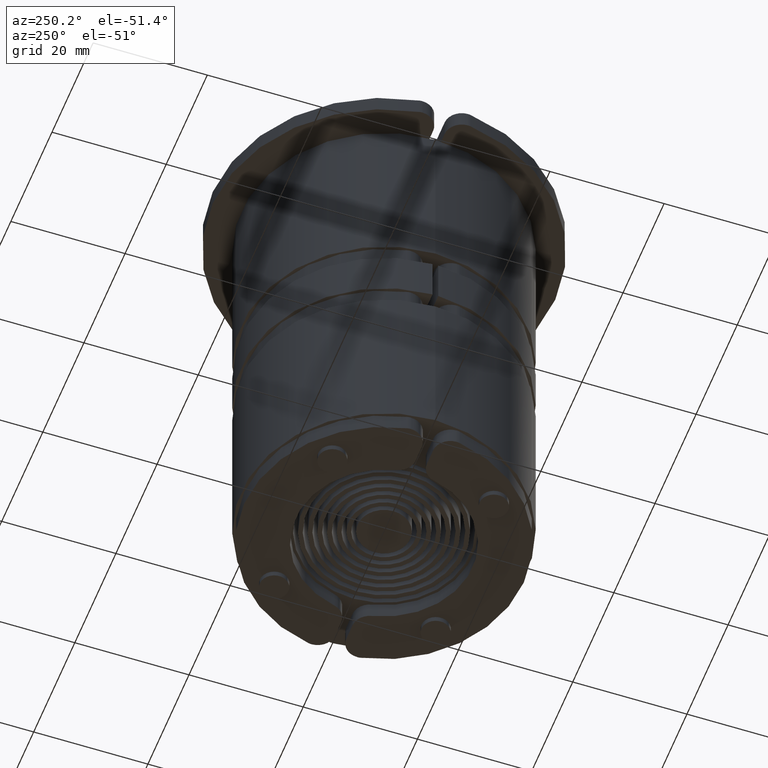
[diagram: clean part render]
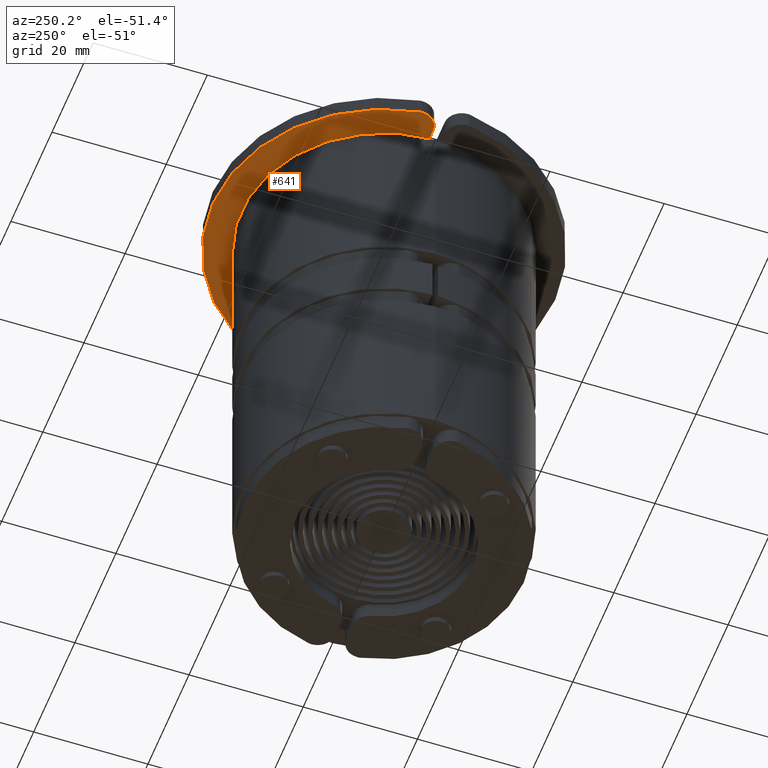
[diagram: same view with one face highlighted and labeled with its STEP entity id]
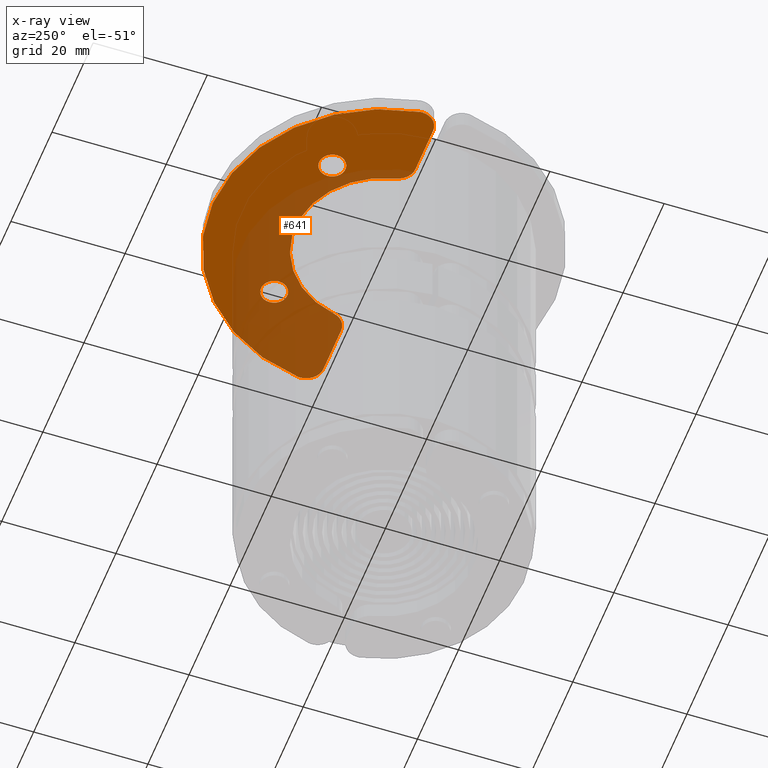
[diagram: x-ray of the same camera — body ghosted, the highlighted face saturated]
A machine part, auxiliary view. The second image highlights one B-rep face of the part: STEP entity #641.
The next image is the same camera in x-ray: the body ghosted, the highlighted face saturated — about 45% of this face is hidden behind the body in this view.
In plain terms, the highlighted planar face has unit normal (0, 0, -1).
Its self-contained STEP definition (entity closure, byte-faithful):
#165=CARTESIAN_POINT('',(16.451535623731047,-1.357864376269390,1.750000000000000));
#166=VERTEX_POINT('',#165);
#182=CARTESIAN_POINT('',(11.832735623731065,-1.357864376269390,1.750000000000000));
#183=VERTEX_POINT('',#182);
#190=CARTESIAN_POINT('',(14.142135623731065,-1.357864376269390,1.750000000000000));
#191=DIRECTION('',(0.0,0.0,1.0));
#192=DIRECTION('',(1.0,0.0,0.0));
#193=AXIS2_PLACEMENT_3D('',#190,#191,#192);
#194=CIRCLE('',#193,2.309400000000000);
#195=EDGE_CURVE('',#183,#166,#194,.T.);
#207=CARTESIAN_POINT('',(-11.832735623731082,-1.357864376269617,1.750000000000000));
#208=VERTEX_POINT('',#207);
#224=CARTESIAN_POINT('',(-16.451535623731065,-1.357864376269617,1.750000000000000));
#225=VERTEX_POINT('',#224);
#232=CARTESIAN_POINT('',(-14.142135623731065,-1.357864376269617,1.750000000000000));
#233=DIRECTION('',(0.0,0.0,1.0));
#234=DIRECTION('',(1.0,0.0,0.0));
#235=AXIS2_PLACEMENT_3D('',#232,#233,#234);
#236=CIRCLE('',#235,2.309400000000000);
#237=EDGE_CURVE('',#225,#208,#236,.T.);
#247=CARTESIAN_POINT('',(-29.702059845636541,-11.500000000000455,1.750000000000000));
#248=VERTEX_POINT('',#247);
#257=CARTESIAN_POINT('',(-29.668955384041624,-11.055555555555429,1.750000000000000));
#258=VERTEX_POINT('',#257);
#259=CARTESIAN_POINT('',(-26.702059845636541,-11.500000000000455,1.750000000000000));
#260=DIRECTION('',(0.0,0.0,-1.0));
#261=DIRECTION('',(1.0,0.0,0.0));
#262=AXIS2_PLACEMENT_3D('',#259,#260,#261);
#263=CIRCLE('',#262,3.0);
#264=EDGE_CURVE('',#248,#258,#263,.T.);
#291=CARTESIAN_POINT('',(29.702059845636541,-11.500000000000455,1.750000000000000));
#292=VERTEX_POINT('',#291);
#308=CARTESIAN_POINT('',(29.668955384041624,-11.055555555555429,1.750000000000000));
#309=VERTEX_POINT('',#308);
#316=CARTESIAN_POINT('',(26.702059845636541,-11.500000000000455,1.750000000000000));
#317=DIRECTION('',(0.0,0.0,-1.0));
#318=DIRECTION('',(1.0,0.0,0.0));
#319=AXIS2_PLACEMENT_3D('',#316,#317,#318);
#320=CIRCLE('',#319,3.0);
#321=EDGE_CURVE('',#309,#292,#320,.T.);
#332=CARTESIAN_POINT('',(26.702059845636541,-14.500000000000455,1.750000000000000));
#333=VERTEX_POINT('',#332);
#334=CARTESIAN_POINT('',(26.702059845636541,-11.500000000000455,1.750000000000000));
#335=DIRECTION('',(0.0,0.0,-1.0));
#336=DIRECTION('',(1.0,0.0,0.0));
#337=AXIS2_PLACEMENT_3D('',#334,#335,#336);
#338=CIRCLE('',#337,3.0);
#339=EDGE_CURVE('',#292,#333,#338,.T.);
#364=CARTESIAN_POINT('',(18.062391868187660,-14.500000000000455,1.750000000000000));
#365=VERTEX_POINT('',#364);
#366=CARTESIAN_POINT('',(26.702059845636541,-14.500000000000455,1.750000000000000));
#367=DIRECTION('',(-1.0,0.0,0.0));
#368=VECTOR('',#367,8.639667977448880);
#369=LINE('',#366,#368);
#370=EDGE_CURVE('',#333,#365,#369,.T.);
#395=CARTESIAN_POINT('',(15.133355349022622,-12.148648648648759,1.750000000000000));
#396=VERTEX_POINT('',#395);
#397=CARTESIAN_POINT('',(18.062391868187660,-11.500000000000455,1.750000000000000));
#398=DIRECTION('',(0.0,0.0,-1.0));
#399=DIRECTION('',(1.0,0.0,0.0));
#400=AXIS2_PLACEMENT_3D('',#397,#398,#399);
#401=CIRCLE('',#400,3.0);
#402=EDGE_CURVE('',#365,#396,#401,.T.);
#428=CARTESIAN_POINT('',(-15.133355349021485,-12.148648648649214,1.750000000000000));
#429=VERTEX_POINT('',#428);
#430=CARTESIAN_POINT('',(0.0,-15.500000000000455,1.750000000000000));
#431=DIRECTION('',(0.0,0.0,1.0));
#432=DIRECTION('',(1.0,0.0,0.0));
#433=AXIS2_PLACEMENT_3D('',#430,#431,#432);
#434=CIRCLE('',#433,15.500000000000000);
#435=EDGE_CURVE('',#396,#429,#434,.T.);
#461=CARTESIAN_POINT('',(-18.062391868187206,-14.500000000000455,1.750000000000000));
#462=VERTEX_POINT('',#461);
#463=CARTESIAN_POINT('',(-18.062391868187206,-11.500000000000455,1.750000000000000));
#464=DIRECTION('',(0.0,0.0,-1.0));
#465=DIRECTION('',(1.0,0.0,0.0));
#466=AXIS2_PLACEMENT_3D('',#463,#464,#465);
#467=CIRCLE('',#466,3.0);
#468=EDGE_CURVE('',#429,#462,#467,.T.);
#494=CARTESIAN_POINT('',(-26.702059845636541,-14.500000000000455,1.750000000000000));
#495=VERTEX_POINT('',#494);
#496=CARTESIAN_POINT('',(-18.062391868187206,-14.500000000000455,1.750000000000000));
#497=DIRECTION('',(-1.0,0.0,0.0));
#498=VECTOR('',#497,8.639667977449335);
#499=LINE('',#496,#498);
#500=EDGE_CURVE('',#462,#495,#499,.T.);
#534=CARTESIAN_POINT('',(-26.702059845636541,-11.500000000000455,1.750000000000000));
#535=DIRECTION('',(0.0,0.0,-1.0));
#536=DIRECTION('',(1.0,0.0,0.0));
#537=AXIS2_PLACEMENT_3D('',#534,#535,#536);
#538=CIRCLE('',#537,3.0);
#539=EDGE_CURVE('',#495,#248,#538,.T.);
#549=CARTESIAN_POINT('',(0.0,-15.499999999999773,1.750000000000000));
#550=DIRECTION('',(0.0,0.0,-1.0));
#551=DIRECTION('',(1.0,0.0,0.0));
#552=AXIS2_PLACEMENT_3D('',#549,#550,#551);
#553=CIRCLE('',#552,30.000000000000071);
#554=EDGE_CURVE('',#258,#309,#553,.T.);
#574=CARTESIAN_POINT('',(-14.142135623731065,-1.357864376269617,1.750000000000000));
#575=DIRECTION('',(0.0,0.0,1.0));
#576=DIRECTION('',(1.0,0.0,0.0));
#577=AXIS2_PLACEMENT_3D('',#574,#575,#576);
#578=CIRCLE('',#577,2.309400000000000);
#579=EDGE_CURVE('',#208,#225,#578,.T.);
#598=CARTESIAN_POINT('',(14.142135623731065,-1.357864376269390,1.750000000000000));
#599=DIRECTION('',(0.0,0.0,1.0));
#600=DIRECTION('',(1.0,0.0,0.0));
#601=AXIS2_PLACEMENT_3D('',#598,#599,#600);
#602=CIRCLE('',#601,2.309400000000000);
#603=EDGE_CURVE('',#166,#183,#602,.T.);
#616=CARTESIAN_POINT('',(0.0,-2.400749391979389,1.750000000000000));
#617=DIRECTION('',(0.0,0.0,1.0));
#618=DIRECTION('',(1.0,0.0,0.0));
#619=AXIS2_PLACEMENT_3D('',#616,#617,#618);
#620=PLANE('',#619);
#621=ORIENTED_EDGE('',*,*,#321,.F.);
#622=ORIENTED_EDGE('',*,*,#554,.F.);
#623=ORIENTED_EDGE('',*,*,#264,.F.);
#624=ORIENTED_EDGE('',*,*,#539,.F.);
#625=ORIENTED_EDGE('',*,*,#500,.F.);
#626=ORIENTED_EDGE('',*,*,#468,.F.);
#627=ORIENTED_EDGE('',*,*,#435,.F.);
#628=ORIENTED_EDGE('',*,*,#402,.F.);
#629=ORIENTED_EDGE('',*,*,#370,.F.);
#630=ORIENTED_EDGE('',*,*,#339,.F.);
#631=EDGE_LOOP('',(#621,#622,#623,#624,#625,#626,#627,#628,#629,#630));
#632=FACE_OUTER_BOUND('',#631,.T.);
#633=ORIENTED_EDGE('',*,*,#603,.F.);
#634=ORIENTED_EDGE('',*,*,#195,.F.);
#635=EDGE_LOOP('',(#633,#634));
#636=FACE_BOUND('',#635,.T.);
#637=ORIENTED_EDGE('',*,*,#579,.F.);
#638=ORIENTED_EDGE('',*,*,#237,.F.);
#639=EDGE_LOOP('',(#637,#638));
#640=FACE_BOUND('',#639,.T.);
#641=ADVANCED_FACE('',(#632,#636,#640),#620,.T.);